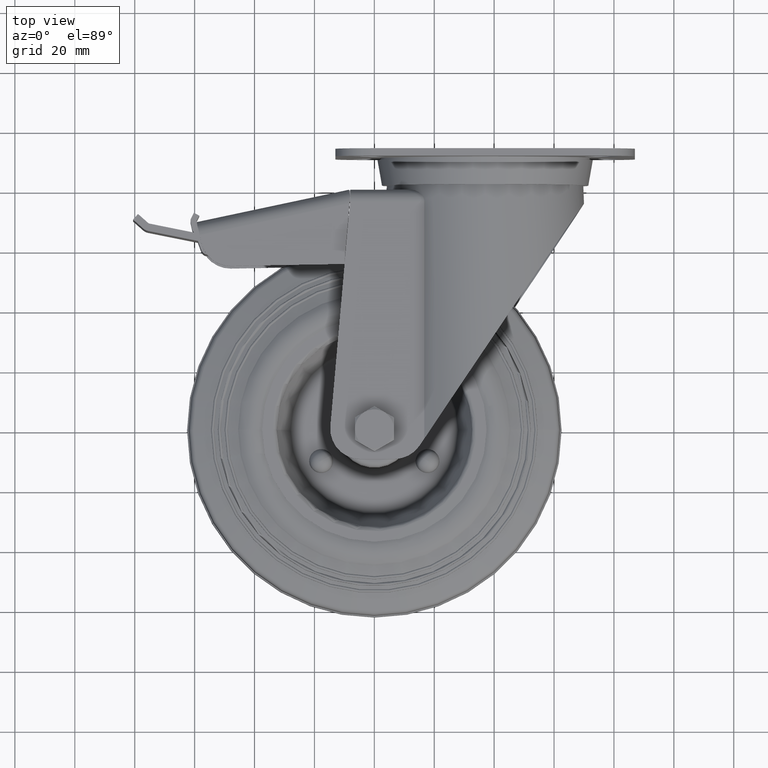
[diagram: clean part render]
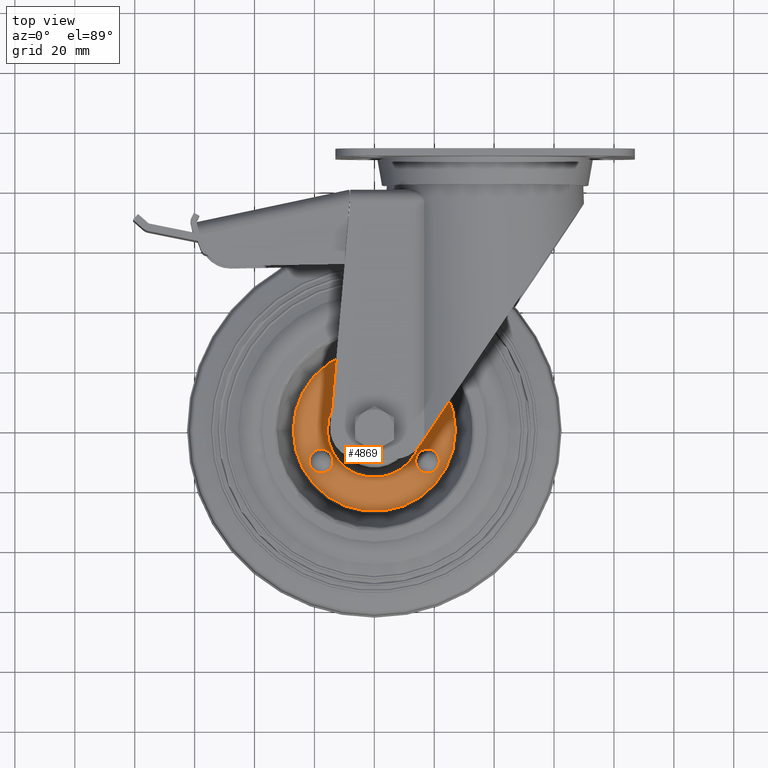
[diagram: same view with one face highlighted and labeled with its STEP entity id]
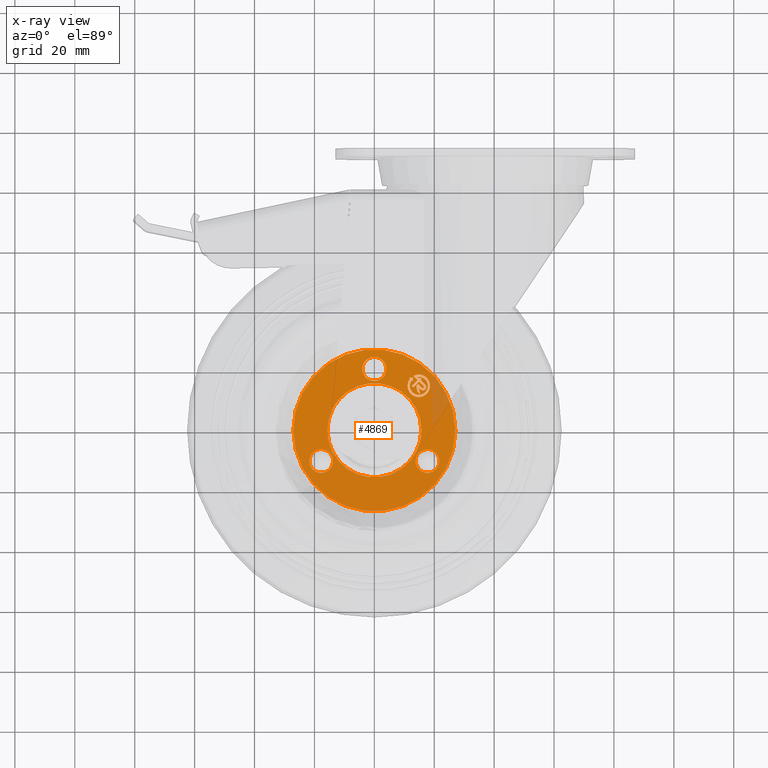
[diagram: x-ray of the same camera — body ghosted, the highlighted face saturated]
A machine part, top view. The second image highlights one B-rep face of the part: STEP entity #4869.
The next image is the same camera in x-ray: the body ghosted, the highlighted face saturated — about 4% of this face is hidden behind the body in this view.
In plain terms, the highlighted planar face has unit normal (0, 0, 1).
Its self-contained STEP definition (entity closure, byte-faithful):
#206=FACE_BOUND('',#793,.T.);
#207=FACE_BOUND('',#794,.T.);
#208=FACE_BOUND('',#795,.T.);
#209=FACE_BOUND('',#796,.T.);
#210=FACE_BOUND('',#797,.T.);
#259=CIRCLE('',#5190,27.0499809046);
#260=CIRCLE('',#5191,3.9799497484);
#261=CIRCLE('',#5192,3.9799497484);
#262=CIRCLE('',#5193,3.9799497484);
#263=CIRCLE('',#5194,15.7);
#264=CIRCLE('',#5195,3.765);
#265=CIRCLE('',#5196,3.012);
#266=CIRCLE('',#5197,1.1295003456);
#267=CIRCLE('',#5198,0.3765001152);
#504=FACE_OUTER_BOUND('',#792,.T.);
#792=EDGE_LOOP('',(#3103));
#793=EDGE_LOOP('',(#3104));
#794=EDGE_LOOP('',(#3105));
#795=EDGE_LOOP('',(#3106));
#796=EDGE_LOOP('',(#3107));
#797=EDGE_LOOP('',(#3108,#3109,#3110,#3111,#3112,#3113,#3114,#3115,#3116,
#3117,#3118,#3119,#3120,#3121,#3122,#3123,#3124,#3125,#3126,#3127,#3128,
#3129,#3130,#3131));
#1126=LINE('',#7225,#1525);
#1149=LINE('',#7279,#1548);
#1151=LINE('',#7295,#1550);
#1152=LINE('',#7297,#1551);
#1153=LINE('',#7301,#1552);
#1154=LINE('',#7303,#1553);
#1155=LINE('',#7305,#1554);
#1156=LINE('',#7307,#1555);
#1157=LINE('',#7309,#1556);
#1158=LINE('',#7313,#1557);
#1159=LINE('',#7315,#1558);
#1160=LINE('',#7317,#1559);
#1161=LINE('',#7319,#1560);
#1162=LINE('',#7321,#1561);
#1163=LINE('',#7323,#1562);
#1164=LINE('',#7327,#1563);
#1165=LINE('',#7329,#1564);
#1166=LINE('',#7331,#1565);
#1167=LINE('',#7333,#1566);
#1168=LINE('',#7334,#1567);
#1525=VECTOR('',#5732,1000.);
#1548=VECTOR('',#5767,1000.);
#1550=VECTOR('',#5783,1000.);
#1551=VECTOR('',#5784,1000.);
#1552=VECTOR('',#5787,1000.);
#1553=VECTOR('',#5788,1000.);
#1554=VECTOR('',#5789,1000.);
#1555=VECTOR('',#5790,1000.);
#1556=VECTOR('',#5791,1000.);
#1557=VECTOR('',#5794,1000.);
#1558=VECTOR('',#5795,999.999999999999);
#1559=VECTOR('',#5796,1000.);
#1560=VECTOR('',#5797,1000.);
#1561=VECTOR('',#5798,1000.);
#1562=VECTOR('',#5799,1000.);
#1563=VECTOR('',#5802,1000.);
#1564=VECTOR('',#5803,1000.);
#1565=VECTOR('',#5804,1000.);
#1566=VECTOR('',#5805,1000.);
#1567=VECTOR('',#5806,1000.);
#1924=VERTEX_POINT('',#7223);
#1925=VERTEX_POINT('',#7224);
#1950=VERTEX_POINT('',#7278);
#1951=VERTEX_POINT('',#7282);
#1952=VERTEX_POINT('',#7284);
#1953=VERTEX_POINT('',#7286);
#1954=VERTEX_POINT('',#7288);
#1955=VERTEX_POINT('',#7290);
#1956=VERTEX_POINT('',#7292);
#1957=VERTEX_POINT('',#7293);
#1958=VERTEX_POINT('',#7296);
#1959=VERTEX_POINT('',#7298);
#1960=VERTEX_POINT('',#7300);
#1961=VERTEX_POINT('',#7302);
#1962=VERTEX_POINT('',#7304);
#1963=VERTEX_POINT('',#7306);
#1964=VERTEX_POINT('',#7308);
#1965=VERTEX_POINT('',#7310);
#1966=VERTEX_POINT('',#7312);
#1967=VERTEX_POINT('',#7314);
#1968=VERTEX_POINT('',#7316);
#1969=VERTEX_POINT('',#7318);
#1970=VERTEX_POINT('',#7320);
#1971=VERTEX_POINT('',#7322);
#1972=VERTEX_POINT('',#7324);
#1973=VERTEX_POINT('',#7326);
#1974=VERTEX_POINT('',#7328);
#1975=VERTEX_POINT('',#7330);
#1976=VERTEX_POINT('',#7332);
#2374=EDGE_CURVE('',#1924,#1925,#1126,.T.);
#2401=EDGE_CURVE('',#1925,#1950,#1149,.T.);
#2403=EDGE_CURVE('',#1951,#1951,#259,.T.);
#2404=EDGE_CURVE('',#1952,#1952,#260,.T.);
#2405=EDGE_CURVE('',#1953,#1953,#261,.T.);
#2406=EDGE_CURVE('',#1954,#1954,#262,.T.);
#2407=EDGE_CURVE('',#1955,#1955,#263,.T.);
#2408=EDGE_CURVE('',#1956,#1957,#264,.F.);
#2409=EDGE_CURVE('',#1957,#1924,#1151,.T.);
#2410=EDGE_CURVE('',#1950,#1958,#1152,.T.);
#2411=EDGE_CURVE('',#1959,#1958,#265,.F.);
#2412=EDGE_CURVE('',#1959,#1960,#1153,.T.);
#2413=EDGE_CURVE('',#1960,#1961,#1154,.T.);
#2414=EDGE_CURVE('',#1961,#1962,#1155,.T.);
#2415=EDGE_CURVE('',#1962,#1963,#1156,.T.);
#2416=EDGE_CURVE('',#1963,#1964,#1157,.T.);
#2417=EDGE_CURVE('',#1964,#1965,#266,.F.);
#2418=EDGE_CURVE('',#1965,#1966,#1158,.T.);
#2419=EDGE_CURVE('',#1966,#1967,#1159,.T.);
#2420=EDGE_CURVE('',#1967,#1968,#1160,.T.);
#2421=EDGE_CURVE('',#1968,#1969,#1161,.T.);
#2422=EDGE_CURVE('',#1969,#1970,#1162,.T.);
#2423=EDGE_CURVE('',#1970,#1971,#1163,.T.);
#2424=EDGE_CURVE('',#1972,#1971,#267,.F.);
#2425=EDGE_CURVE('',#1972,#1973,#1164,.T.);
#2426=EDGE_CURVE('',#1973,#1974,#1165,.T.);
#2427=EDGE_CURVE('',#1974,#1975,#1166,.T.);
#2428=EDGE_CURVE('',#1975,#1976,#1167,.T.);
#2429=EDGE_CURVE('',#1976,#1956,#1168,.T.);
#3103=ORIENTED_EDGE('',*,*,#2403,.T.);
#3104=ORIENTED_EDGE('',*,*,#2404,.F.);
#3105=ORIENTED_EDGE('',*,*,#2405,.F.);
#3106=ORIENTED_EDGE('',*,*,#2406,.F.);
#3107=ORIENTED_EDGE('',*,*,#2407,.F.);
#3108=ORIENTED_EDGE('',*,*,#2408,.T.);
#3109=ORIENTED_EDGE('',*,*,#2409,.T.);
#3110=ORIENTED_EDGE('',*,*,#2374,.T.);
#3111=ORIENTED_EDGE('',*,*,#2401,.T.);
#3112=ORIENTED_EDGE('',*,*,#2410,.T.);
#3113=ORIENTED_EDGE('',*,*,#2411,.F.);
#3114=ORIENTED_EDGE('',*,*,#2412,.T.);
#3115=ORIENTED_EDGE('',*,*,#2413,.T.);
#3116=ORIENTED_EDGE('',*,*,#2414,.T.);
#3117=ORIENTED_EDGE('',*,*,#2415,.T.);
#3118=ORIENTED_EDGE('',*,*,#2416,.T.);
#3119=ORIENTED_EDGE('',*,*,#2417,.T.);
#3120=ORIENTED_EDGE('',*,*,#2418,.T.);
#3121=ORIENTED_EDGE('',*,*,#2419,.T.);
#3122=ORIENTED_EDGE('',*,*,#2420,.T.);
#3123=ORIENTED_EDGE('',*,*,#2421,.T.);
#3124=ORIENTED_EDGE('',*,*,#2422,.T.);
#3125=ORIENTED_EDGE('',*,*,#2423,.T.);
#3126=ORIENTED_EDGE('',*,*,#2424,.F.);
#3127=ORIENTED_EDGE('',*,*,#2425,.T.);
#3128=ORIENTED_EDGE('',*,*,#2426,.T.);
#3129=ORIENTED_EDGE('',*,*,#2427,.T.);
#3130=ORIENTED_EDGE('',*,*,#2428,.T.);
#3131=ORIENTED_EDGE('',*,*,#2429,.T.);
#4468=PLANE('',#5189);
#4869=ADVANCED_FACE('',(#504,#206,#207,#208,#209,#210),#4468,.T.);
#5189=AXIS2_PLACEMENT_3D('',#7281,#5769,#5770);
#5190=AXIS2_PLACEMENT_3D('',#7283,#5771,#5772);
#5191=AXIS2_PLACEMENT_3D('',#7285,#5773,#5774);
#5192=AXIS2_PLACEMENT_3D('',#7287,#5775,#5776);
#5193=AXIS2_PLACEMENT_3D('',#7289,#5777,#5778);
#5194=AXIS2_PLACEMENT_3D('',#7291,#5779,#5780);
#5195=AXIS2_PLACEMENT_3D('',#7294,#5781,#5782);
#5196=AXIS2_PLACEMENT_3D('',#7299,#5785,#5786);
#5197=AXIS2_PLACEMENT_3D('',#7311,#5792,#5793);
#5198=AXIS2_PLACEMENT_3D('',#7325,#5800,#5801);
#5732=DIRECTION('',(0.999843168174244,0.0177098575739596,0.));
#5767=DIRECTION('',(0.0177105861282715,-0.999843155269362,0.));
#5769=DIRECTION('center_axis',(0.,0.,1.));
#5770=DIRECTION('ref_axis',(1.,0.,0.));
#5771=DIRECTION('center_axis',(0.,0.,1.));
#5772=DIRECTION('ref_axis',(1.,0.,0.));
#5773=DIRECTION('center_axis',(0.,0.,1.));
#5774=DIRECTION('ref_axis',(1.,0.,0.));
#5775=DIRECTION('center_axis',(0.,0.,1.));
#5776=DIRECTION('ref_axis',(1.,0.,0.));
#5777=DIRECTION('center_axis',(0.,0.,1.));
#5778=DIRECTION('ref_axis',(1.,0.,0.));
#5779=DIRECTION('center_axis',(0.,0.,1.));
#5780=DIRECTION('ref_axis',(1.,0.,0.));
#5781=DIRECTION('center_axis',(0.,0.,1.));
#5782=DIRECTION('ref_axis',(1.,0.,0.));
#5783=DIRECTION('',(-0.71951858939957,0.694473181273728,0.));
#5784=DIRECTION('',(-0.719519168307694,0.694472581487422,0.));
#5785=DIRECTION('center_axis',(0.,0.,1.));
#5786=DIRECTION('ref_axis',(1.,0.,0.));
#5787=DIRECTION('',(0.707289188009389,-0.706924327297498,0.));
#5788=DIRECTION('',(0.706924327426122,0.707289187880831,0.));
#5789=DIRECTION('',(0.70728856980199,-0.706924945823428,0.));
#5790=DIRECTION('',(-0.706923296237873,-0.707290218535631,0.));
#5791=DIRECTION('',(0.707289408871652,-0.706924106321173,0.));
#5792=DIRECTION('center_axis',(0.,0.,1.));
#5793=DIRECTION('ref_axis',(1.,0.,0.));
#5794=DIRECTION('',(-0.707288619185675,0.706924896414337,0.));
#5795=DIRECTION('',(0.174039629118148,-0.984738649336167,0.));
#5796=DIRECTION('',(-0.707289394020265,0.706924121180234,0.));
#5797=DIRECTION('',(-0.174039513373566,0.984738669792495,0.));
#5798=DIRECTION('',(0.706924327160065,0.707289188146751,0.));
#5799=DIRECTION('',(0.70728918798611,-0.706924327320789,0.));
#5800=DIRECTION('center_axis',(0.,0.,1.));
#5801=DIRECTION('ref_axis',(1.,0.,0.));
#5802=DIRECTION('',(-0.707289188016935,0.706924327289948,0.));
#5803=DIRECTION('',(-0.706924327267252,-0.707289188039619,0.));
#5804=DIRECTION('',(-0.707289188009387,0.7069243272975,0.));
#5805=DIRECTION('',(0.706924327267233,0.707289188039638,0.));
#5806=DIRECTION('',(-0.707289188076863,0.706924327229989,0.));
#7223=CARTESIAN_POINT('',(11.600760743,17.648095265,1.2));
#7224=CARTESIAN_POINT('',(12.8784440458001,17.6707264036,1.2));
#7225=CARTESIAN_POINT('',(-0.0308566272687895,17.4420686664901,1.2));
#7278=CARTESIAN_POINT('',(12.9010761156999,16.3930431008,1.2));
#7279=CARTESIAN_POINT('',(12.909301775837,15.9286671661969,1.2));
#7281=CARTESIAN_POINT('Origin',(0.,15.7,1.2));
#7282=CARTESIAN_POINT('',(-27.0499809046,-3.31266725318154E-15,1.2));
#7283=CARTESIAN_POINT('Origin',(0.,0.,1.2));
#7284=CARTESIAN_POINT('',(4.87403272014537E-16,16.5200502516,1.2));
#7285=CARTESIAN_POINT('Origin',(0.,20.5,1.2));
#7286=CARTESIAN_POINT('',(14.3067831896811,-8.2600251258,1.2));
#7287=CARTESIAN_POINT('Origin',(17.753520777581,-10.25,1.2));
#7288=CARTESIAN_POINT('',(-14.3067831896811,-8.2600251258,1.2));
#7289=CARTESIAN_POINT('Origin',(-17.753520777581,-10.25,1.2));
#7290=CARTESIAN_POINT('',(-15.7,-1.92269547466134E-15,1.2));
#7291=CARTESIAN_POINT('Origin',(0.,0.,1.2));
#7292=CARTESIAN_POINT('',(13.0380558932486,18.1499739026109,1.2));
#7293=CARTESIAN_POINT('',(11.9776926182836,17.2842838466319,1.2));
#7294=CARTESIAN_POINT('Origin',(14.8492424048999,14.8492424049,1.2));
#7295=CARTESIAN_POINT('',(6.5684023345588,22.5052845089029,1.2));
#7296=CARTESIAN_POINT('',(12.5208966999124,16.7599884053029,1.2));
#7297=CARTESIAN_POINT('',(6.56839211573198,22.5052852743415,1.2));
#7298=CARTESIAN_POINT('',(14.4225113614188,17.8308601900159,1.2));
#7299=CARTESIAN_POINT('Origin',(14.8492424048999,14.8492424049,1.2));
#7300=CARTESIAN_POINT('',(14.9551006034,17.2985456884001,1.2));
#7301=CARTESIAN_POINT('',(8.27296469121463,23.9772345680177,1.2));
#7302=CARTESIAN_POINT('',(15.2744892984999,17.6180992276,1.2));
#7303=CARTESIAN_POINT('',(6.68213590946556,9.02131112067166,1.2));
#7304=CARTESIAN_POINT('',(15.8070772886,17.0857850462,1.2));
#7305=CARTESIAN_POINT('',(8.59236674469857,24.296786436774,1.2));
#7306=CARTESIAN_POINT('',(15.4876895248999,16.7662315071,1.2));
#7307=CARTESIAN_POINT('',(7.21474741184257,8.48899539645411,1.2));
#7308=CARTESIAN_POINT('',(16.9789378873051,15.2757533482683,1.2));
#7309=CARTESIAN_POINT('',(8.27295985226963,23.9772348986389,1.2));
#7310=CARTESIAN_POINT('',(15.3819949501305,13.6779869767411,1.2));
#7311=CARTESIAN_POINT('Origin',(16.1804666205046,14.4768699608218,1.2));
#7312=CARTESIAN_POINT('',(14.880339615,14.1793843359,1.2));
#7313=CARTESIAN_POINT('',(6.67603498914437,22.3794699027542,1.2));
#7314=CARTESIAN_POINT('',(15.2459833771,12.1105248109,1.2));
#7315=CARTESIAN_POINT('',(14.1690087060308,18.2041862851953,1.2));
#7316=CARTESIAN_POINT('',(14.3172582611001,13.0387702957,1.2));
#7317=CARTESIAN_POINT('',(5.82431649577586,21.527325962512,1.2));
#7318=CARTESIAN_POINT('',(13.9973200858,14.8490229622,1.2));
#7319=CARTESIAN_POINT('',(13.4275013575675,18.073132967944,1.2));
#7320=CARTESIAN_POINT('',(14.6360965445999,15.4881291092,1.2));
#7321=CARTESIAN_POINT('',(7.42775975312126,8.27607191827681,1.2));
#7322=CARTESIAN_POINT('',(15.9143097742892,14.210575255813,1.2));
#7323=CARTESIAN_POINT('',(7.20833679480451,22.912057190973,1.2));
#7324=CARTESIAN_POINT('',(16.4466239555951,14.7431641773072,1.2));
#7325=CARTESIAN_POINT('Origin',(16.1804667834834,14.4768697979768,1.2));
#7326=CARTESIAN_POINT('',(14.9553753436001,16.2336435169,1.2));
#7327=CARTESIAN_POINT('',(7.74065097540492,23.4446461124135,1.2));
#7328=CARTESIAN_POINT('',(13.0390450358,14.3163241446,1.2));
#7329=CARTESIAN_POINT('',(7.21472436867509,8.4889974044696,1.2));
#7330=CARTESIAN_POINT('',(12.5064561142999,14.8486383259,1.2));
#7331=CARTESIAN_POINT('',(5.82432066768251,21.5273267401899,1.2));
#7332=CARTESIAN_POINT('',(14.4227864220999,16.7659576982,1.2));
#7333=CARTESIAN_POINT('',(6.68213544715256,9.02131158574684,1.2));
#7334=CARTESIAN_POINT('',(7.74065097418785,23.4446461125089,1.2));